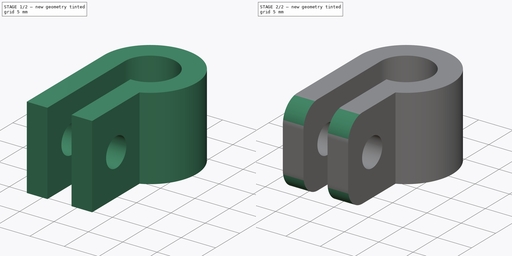
[diagram: build sequence overview — one tinted view per stage of 2, left to right]
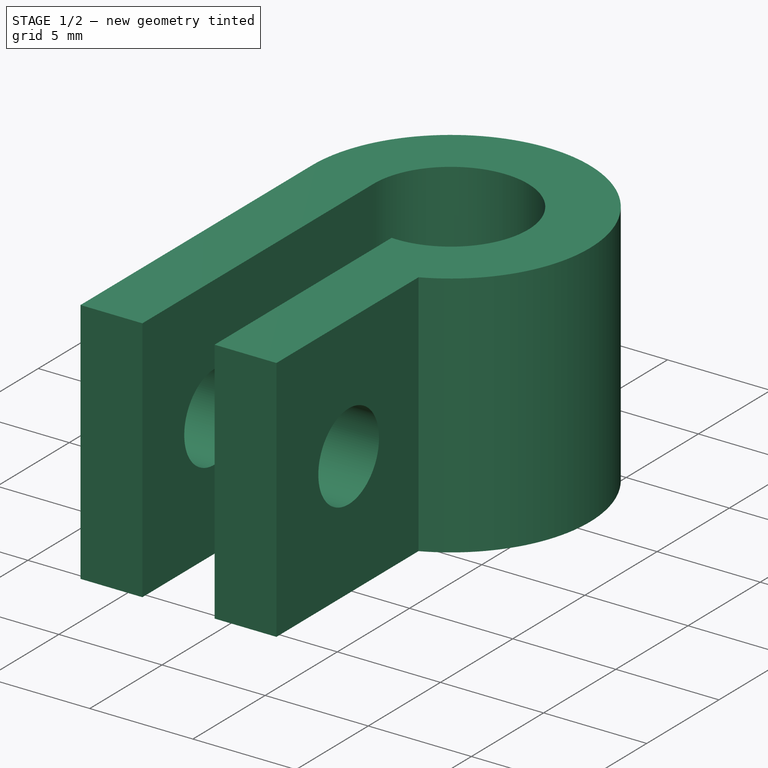
[diagram: stage 1 of 2 — iso view after this stage's code; geometry added in this stage tinted green]
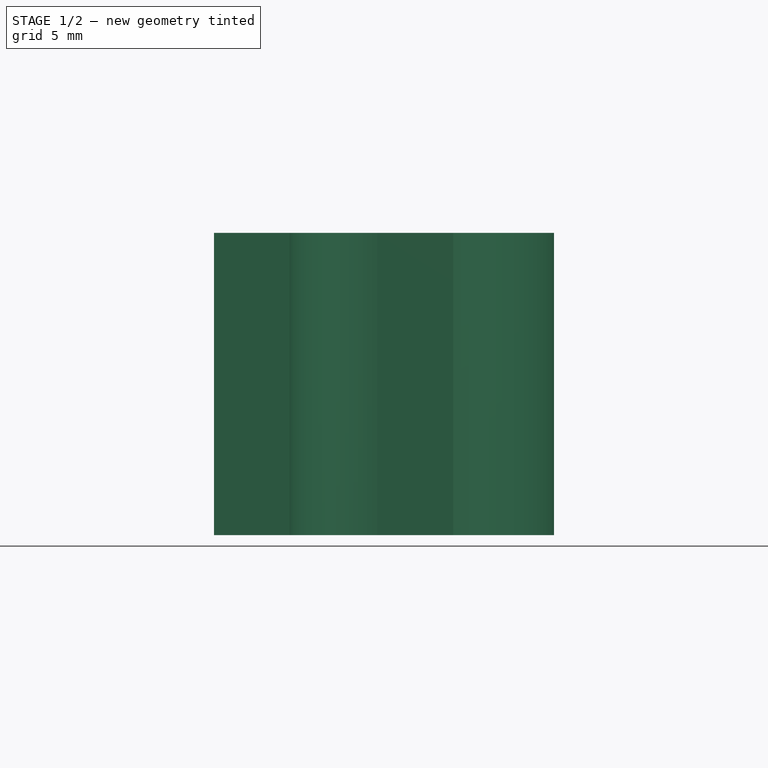
[diagram: stage 1 of 2 — front view after this stage's code; geometry added in this stage tinted green]
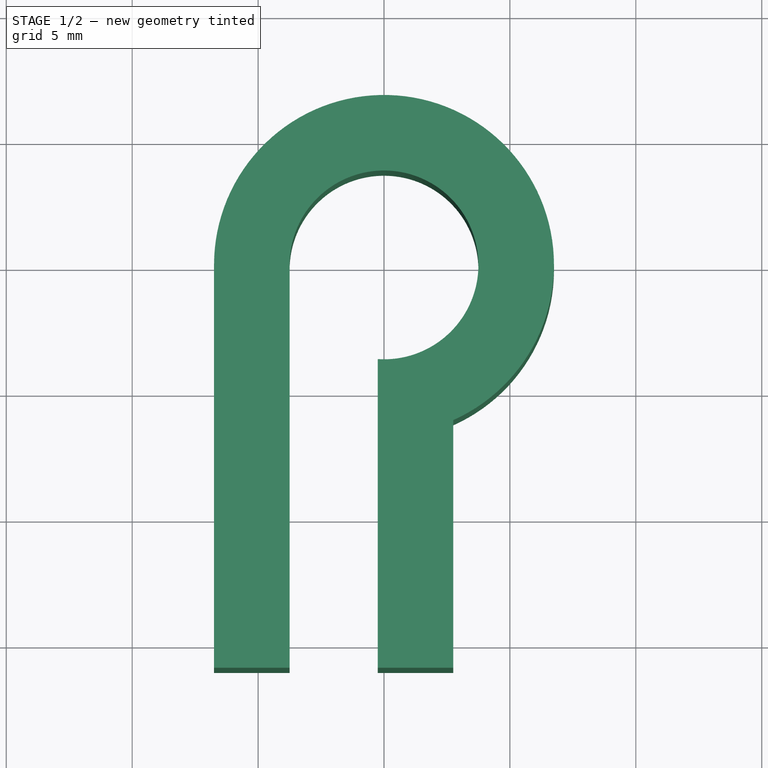
[diagram: stage 1 of 2 — top view after this stage's code; geometry added in this stage tinted green]
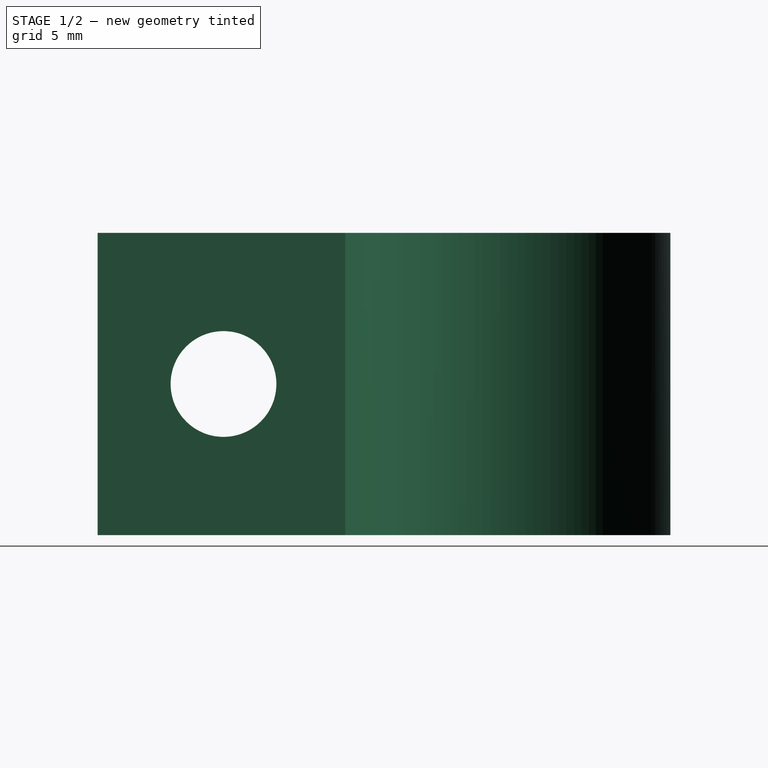
[diagram: stage 1 of 2 — right view after this stage's code; geometry added in this stage tinted green]
FCSTD DOCUMENT  (FreeCAD 0.16R6705 (Git))
Label: schelle
License: All rights reserved
LicenseURL: http://de.wikipedia.org/wiki/Alle_Rechte_vorbehalten
objects: Sketcher::SketchObject×2, PartDesign::Fillet×2, PartDesign::Pad×1, PartDesign::Pocket×1
note: 8 computed .brp shape members not serialized (recipe doc carries the construction recipe); baked Part::Feature solids carry a one-line shape summary decoded from their .brp

FEATURE [Sketcher::SketchObject] Sketch
  sketch-geometry (9):
    g0: ArcOfCircle CenterX=0 CenterY=0 CenterZ=0 NormalX=0 NormalY=0 NormalZ=1 Radius=3.75 StartAngle=4.64567 EndAngle=9.42478
    g1: ArcOfCircle CenterX=0 CenterY=0 CenterZ=0 NormalX=0 NormalY=0 NormalZ=1 Radius=6.75 StartAngle=5.132 EndAngle=9.42478
    g2: LineSegment StartX=-6.75 StartY=-1e-12 StartZ=0 EndX=-6.75 EndY=-16 EndZ=0
    g3: LineSegment StartX=-6.75 StartY=-16 StartZ=0 EndX=-3.75 EndY=-16 EndZ=0
    g4: LineSegment StartX=-3.75 StartY=-16 StartZ=0 EndX=-3.75 EndY=0 EndZ=0
    g5: LineSegment StartX=-0.25 StartY=-3.74166 StartZ=0 EndX=-0.25 EndY=-16 EndZ=0
    g6: LineSegment StartX=-0.25 StartY=-16 StartZ=0 EndX=2.75 EndY=-16 EndZ=0
    g7: LineSegment StartX=2.75 StartY=-16 StartZ=0 EndX=2.75 EndY=-6.16441 EndZ=0
    g8: LineSegment [constr] StartX=-3.75 StartY=-16 StartZ=0 EndX=-0.25 EndY=-16 EndZ=0
  constraints (25):
    c: Coincident(g1,g-1)
    c: Tangent(g1,g2) = -1.5708
    c: Coincident(g2,g3)
    c: Horizontal(g3)
    c: Coincident(g3,g4)
    c: Coincident(g4,g0)
    c: Vertical(g4)
    c: Vertical(g2)
    c: DistanceX(g3,g3) = 3
    c: Coincident(g0,g-1)
    c: PointOnObject(g0,g-1)
    c: Coincident(g0,g5)
    c: Coincident(g5,g6)
    c: Horizontal(g6)
    c: Coincident(g6,g7)
    c: Coincident(g7,g1)
    c: Vertical(g7)
    c: Vertical(g5)
    c: DistanceX(g6,g6) = 3
    c: DistanceX(g3,g5) = 3.5
    c: Radius(g0) = 3.75
    c: DistanceY(g2,g2) = 16
    c: Coincident(g8,g3)
    c: Horizontal(g8)
    c: Coincident(g5,g8)
FEATURE [PartDesign::Pad] Pad
  Length = 12
  Length2 = 100
  Sketch = -> Sketch
  Type = 0
FEATURE [Sketcher::SketchObject] Sketch001
  ExternalGeometry = -> [Pad]
  Placement = pos=(2.75,0,0) rot=(0.57735,0.57735,0.57735;2.0944rad)
  Support = -> Pad [Face6]
  sketch-geometry (1):
    g0: Circle CenterX=-11 CenterY=6 CenterZ=0 NormalX=0 NormalY=0 NormalZ=1 Radius=2.1
  constraints (3):
    c: DistanceY(g-3,g0) = 6
    c: DistanceX(g-3,g0) = 5
    c: Radius(g0) = 2.1
FEATURE [PartDesign::Pocket] Pocket
  Length = 5
  Sketch = -> Sketch001
  Type = 1
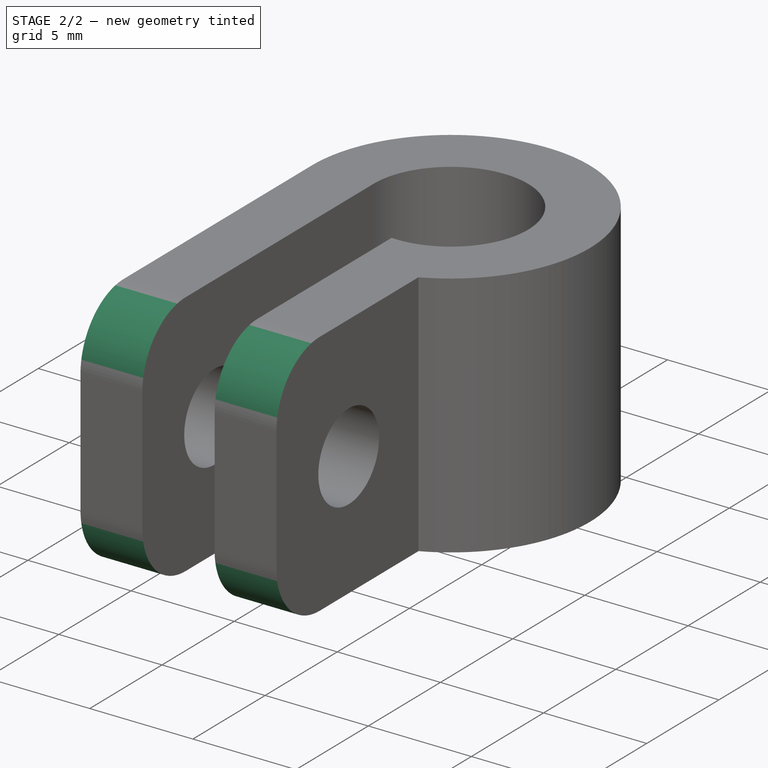
[diagram: stage 2 of 2 — iso view after this stage's code; geometry added in this stage tinted green]
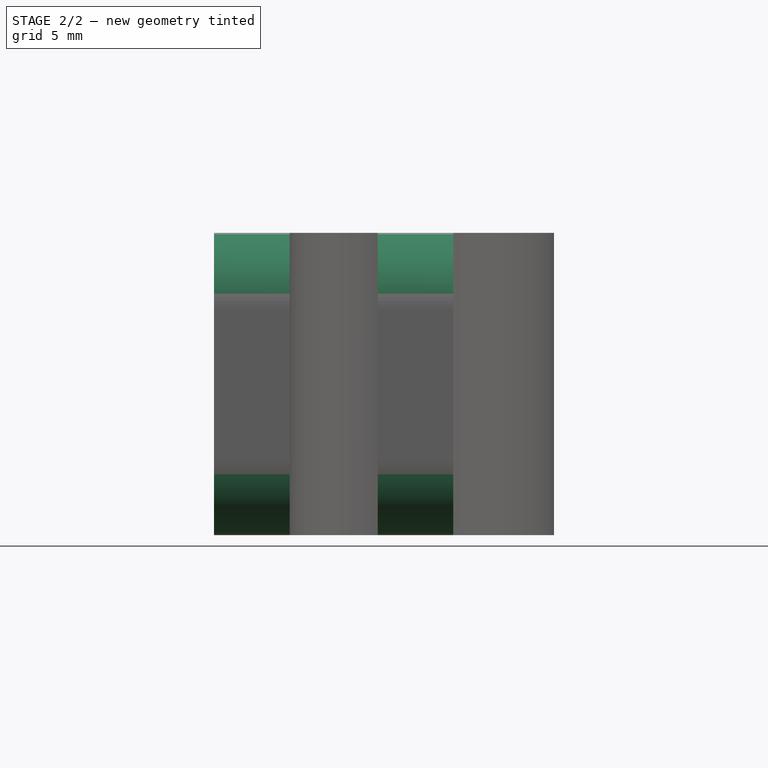
[diagram: stage 2 of 2 — front view after this stage's code; geometry added in this stage tinted green]
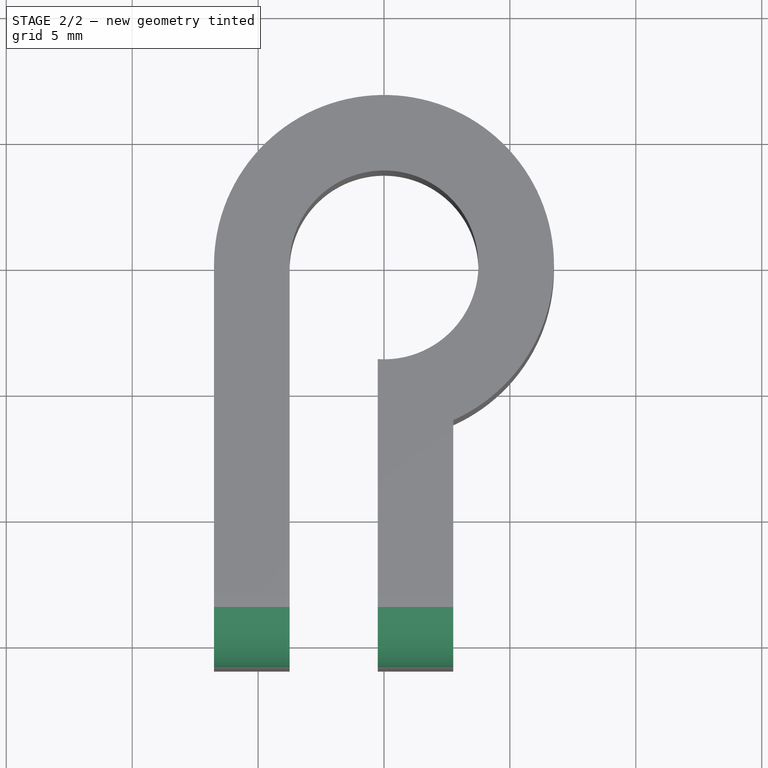
[diagram: stage 2 of 2 — top view after this stage's code; geometry added in this stage tinted green]
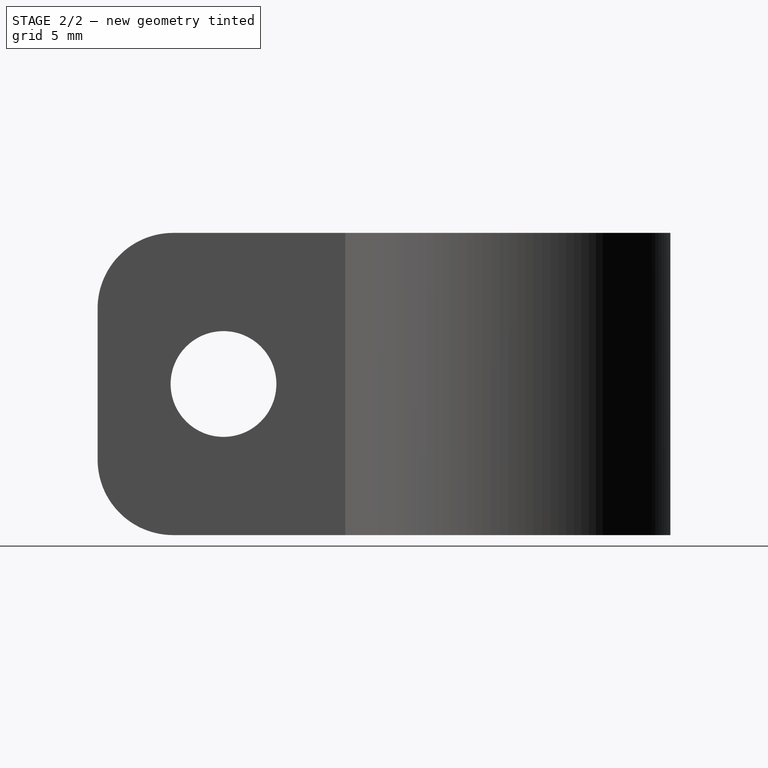
[diagram: stage 2 of 2 — right view after this stage's code; geometry added in this stage tinted green]
FEATURE [PartDesign::Fillet] Fillet
  Base = -> Pocket [Edge17,Edge13]
  Radius = 3
FEATURE [PartDesign::Fillet] Fillet001
  Base = -> Fillet [Edge21,Edge18]
  Radius = 3
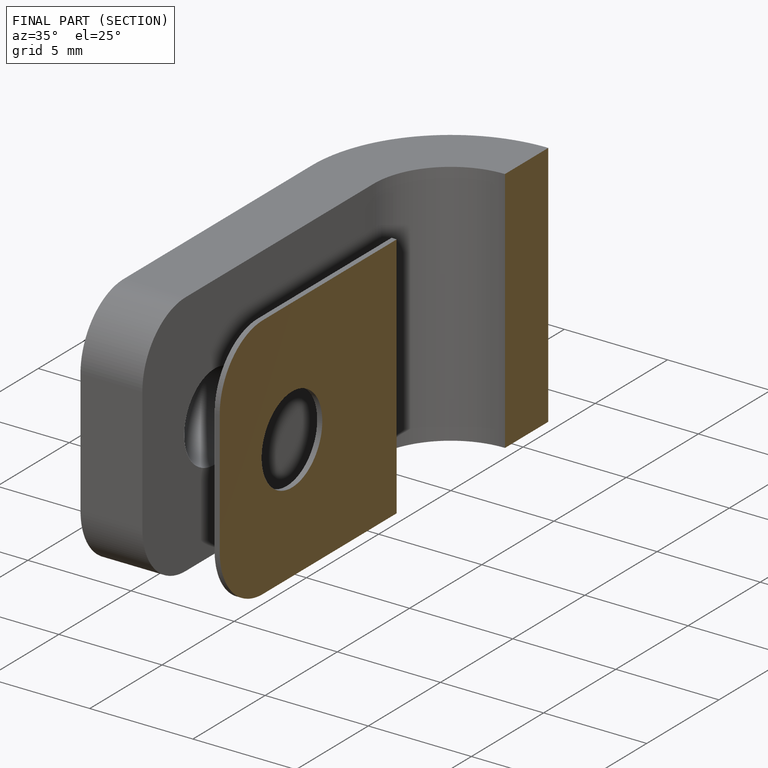
[diagram: finished part — half-section view (interior)]
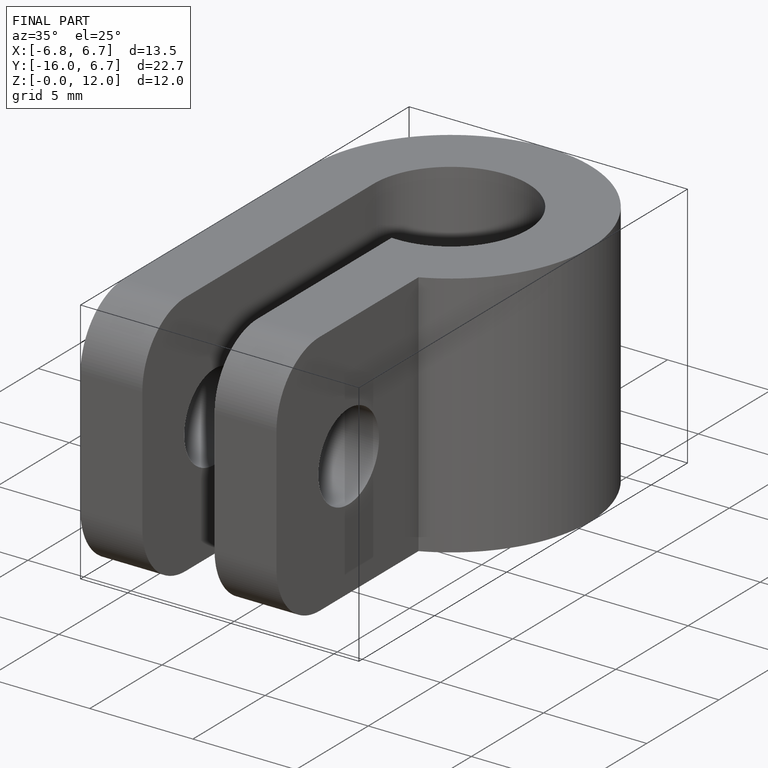
[diagram: finished part — iso view with bounding-box wireframe]
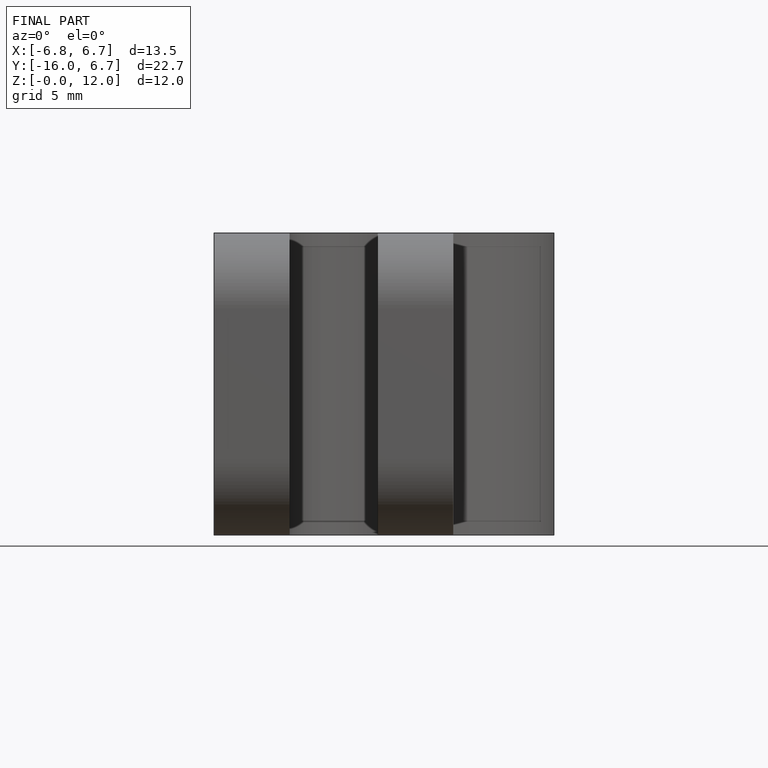
[diagram: finished part — front view with bounding-box wireframe]
